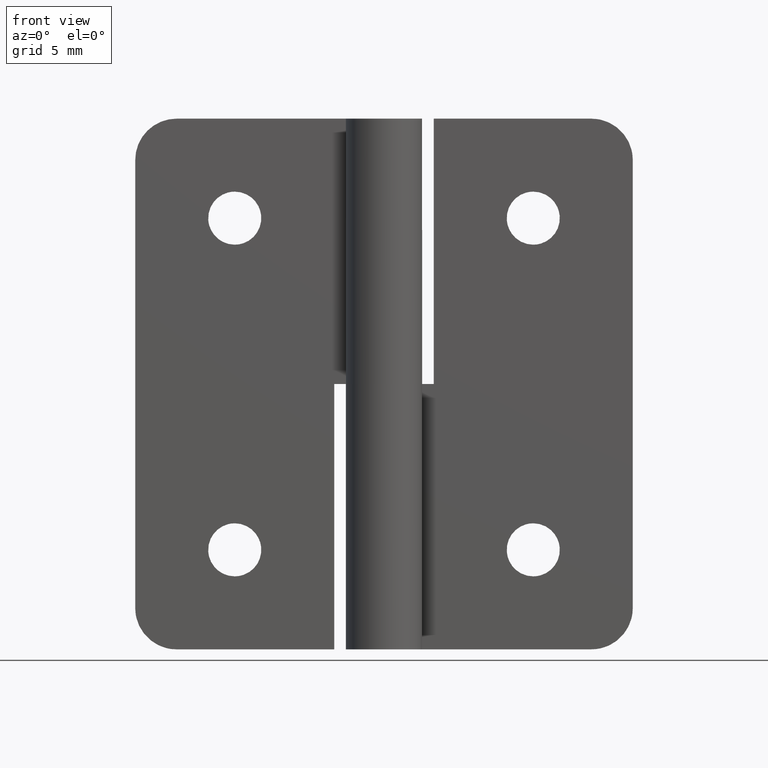
[diagram: clean part render]
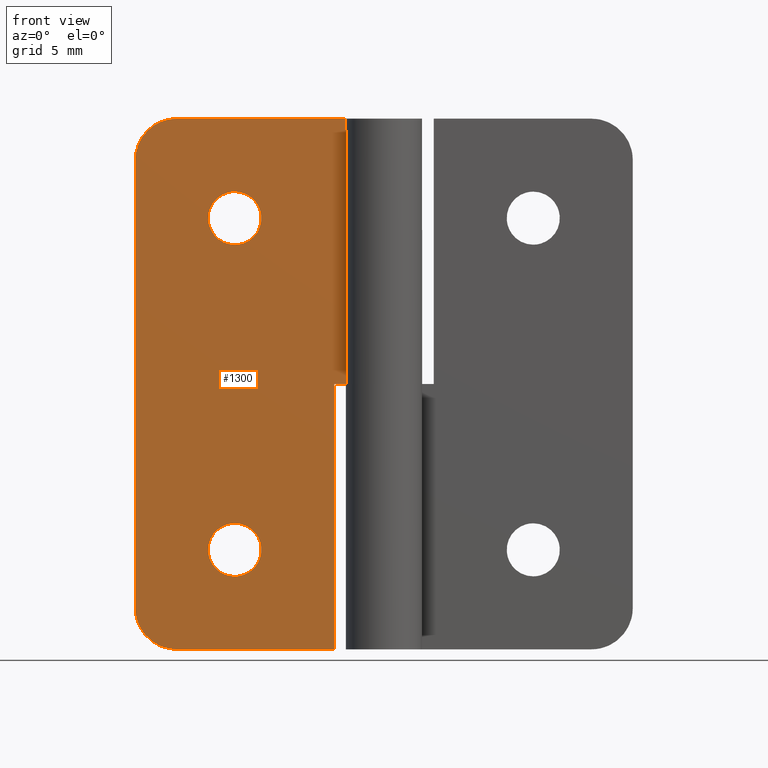
[diagram: same view with one face highlighted and labeled with its STEP entity id]
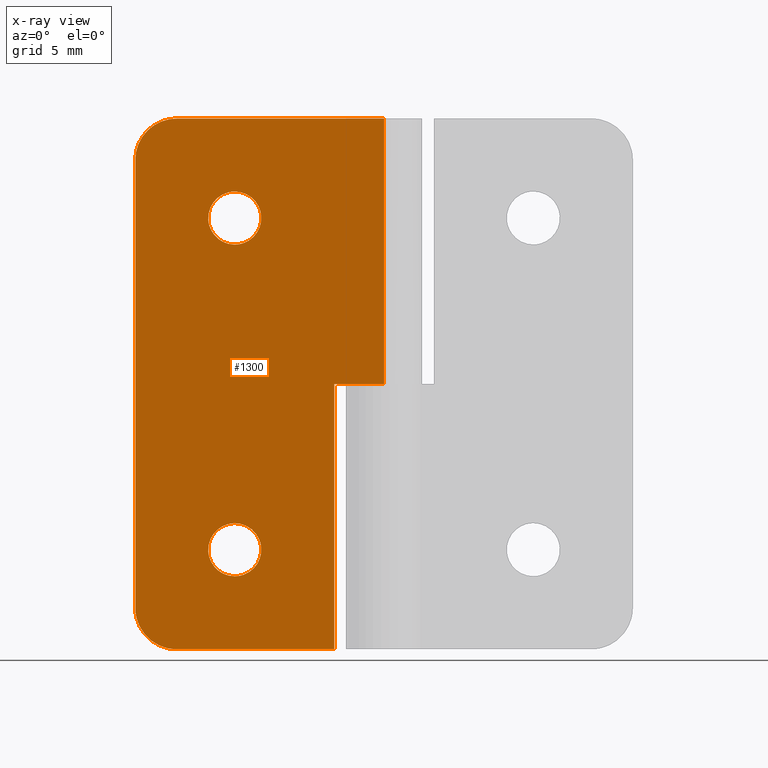
[diagram: x-ray of the same camera — body ghosted, the highlighted face saturated]
A machine part, front view. The second image highlights one B-rep face of the part: STEP entity #1300.
The next image is the same camera in x-ray: the body ghosted, the highlighted face saturated — about 0% of this face is hidden behind the body in this view.
In plain terms, the highlighted face is a freeform B-spline surface patch.
Its self-contained STEP definition (entity closure, byte-faithful):
#493=CARTESIAN_POINT('',(-10.597015677469701,1.499999999999946,25.902314336660918));
#494=VERTEX_POINT('',#493);
#500=CARTESIAN_POINT('',(-8.999999999999799,1.499999999999946,24.399991999999902));
#501=VERTEX_POINT('',#500);
#502=CARTESIAN_POINT('',(-8.999999999999799,1.499999999999946,24.399991999999902));
#503=CARTESIAN_POINT('',(-10.505129706891758,1.499999999999946,24.399991999999905));
#504=CARTESIAN_POINT('',(-10.597015677469699,1.499999999999947,25.902314336660911));
#512=(BOUNDED_CURVE()B_SPLINE_CURVE(2,(#502,#503,#504),.UNSPECIFIED.,.F.,.U.)B_SPLINE_CURVE_WITH_KNOTS((3,3),(0.500000000000000,0.739332962223986),.UNSPECIFIED.)CURVE()GEOMETRIC_REPRESENTATION_ITEM()RATIONAL_B_SPLINE_CURVE((1.0,0.719603993304233,0.976072041634662))REPRESENTATION_ITEM(''));
#513=EDGE_CURVE('',#501,#494,#512,.T.);
#515=CARTESIAN_POINT('',(-7.411184757819425,1.499999999999946,26.188846775463261));
#516=VERTEX_POINT('',#515);
#517=CARTESIAN_POINT('',(-7.411184757819425,1.499999999999946,26.188846775463265));
#518=CARTESIAN_POINT('',(-7.399999999999799,1.499999999999946,26.094750591455636));
#519=CARTESIAN_POINT('',(-7.399999999999800,1.499999999999946,25.999991999999899));
#520=CARTESIAN_POINT('',(-7.399999999999801,1.499999999999946,24.399991999999902));
#521=CARTESIAN_POINT('',(-8.999999999999799,1.499999999999946,24.399991999999902));
#529=(BOUNDED_CURVE()B_SPLINE_CURVE(2,(#517,#518,#519,#520,#521),.UNSPECIFIED.,.F.,.U.)B_SPLINE_CURVE_WITH_KNOTS((3,2,3),(0.229562473512975,0.250000000000000,0.500000000000000),.UNSPECIFIED.)CURVE()GEOMETRIC_REPRESENTATION_ITEM()RATIONAL_B_SPLINE_CURVE((0.956026754182654,0.976055948330520,1.0,0.707106781186548,1.0))REPRESENTATION_ITEM(''));
#530=EDGE_CURVE('',#516,#501,#529,.T.);
#574=CARTESIAN_POINT('',(-8.999999999999799,1.499999999999946,27.599991999999901));
#575=VERTEX_POINT('',#574);
#576=CARTESIAN_POINT('',(-8.999999999999799,1.499999999999946,27.599991999999901));
#577=CARTESIAN_POINT('',(-7.578920758500213,1.499999999999946,27.599991999999897));
#578=CARTESIAN_POINT('',(-7.411184757819425,1.499999999999946,26.188846775463261));
#586=(BOUNDED_CURVE()B_SPLINE_CURVE(2,(#576,#577,#578),.UNSPECIFIED.,.F.,.U.)B_SPLINE_CURVE_WITH_KNOTS((3,3),(0.0,0.229562473512975),.UNSPECIFIED.)CURVE()GEOMETRIC_REPRESENTATION_ITEM()RATIONAL_B_SPLINE_CURVE((1.0,0.731050832856027,0.956026754182654))REPRESENTATION_ITEM(''));
#587=EDGE_CURVE('',#575,#516,#586,.T.);
#589=CARTESIAN_POINT('',(-10.597015677469699,1.499999999999947,25.902314336660911));
#590=CARTESIAN_POINT('',(-10.599999999999797,1.499999999999946,25.951107578638712));
#591=CARTESIAN_POINT('',(-10.599999999999801,1.499999999999946,25.999991999999899));
#592=CARTESIAN_POINT('',(-10.599999999999801,1.499999999999946,27.599991999999908));
#593=CARTESIAN_POINT('',(-8.999999999999799,1.499999999999946,27.599991999999901));
#601=(BOUNDED_CURVE()B_SPLINE_CURVE(2,(#589,#590,#591,#592,#593),.UNSPECIFIED.,.F.,.U.)B_SPLINE_CURVE_WITH_KNOTS((3,2,3),(0.739332962223986,0.750000000000000,1.0),.UNSPECIFIED.)CURVE()GEOMETRIC_REPRESENTATION_ITEM()RATIONAL_B_SPLINE_CURVE((0.976072041634662,0.987502787882314,1.0,0.707106781186548,1.0))REPRESENTATION_ITEM(''));
#602=EDGE_CURVE('',#494,#575,#601,.T.);
#679=CARTESIAN_POINT('',(-10.597015677469701,1.499999999999946,5.902322336661106));
#680=VERTEX_POINT('',#679);
#686=CARTESIAN_POINT('',(-8.999999999999799,1.499999999999946,4.400000000000100));
#687=VERTEX_POINT('',#686);
#688=CARTESIAN_POINT('',(-8.999999999999799,1.499999999999946,4.400000000000100));
#689=CARTESIAN_POINT('',(-10.505129706891758,1.499999999999946,4.400000000000100));
#690=CARTESIAN_POINT('',(-10.597015677469699,1.499999999999947,5.902322336661106));
#698=(BOUNDED_CURVE()B_SPLINE_CURVE(2,(#688,#689,#690),.UNSPECIFIED.,.F.,.U.)B_SPLINE_CURVE_WITH_KNOTS((3,3),(0.500000000000000,0.739332962223986),.UNSPECIFIED.)CURVE()GEOMETRIC_REPRESENTATION_ITEM()RATIONAL_B_SPLINE_CURVE((1.0,0.719603993304233,0.976072041634662))REPRESENTATION_ITEM(''));
#699=EDGE_CURVE('',#687,#680,#698,.T.);
#701=CARTESIAN_POINT('',(-7.411184757819425,1.499999999999946,6.188854775463462));
#702=VERTEX_POINT('',#701);
#703=CARTESIAN_POINT('',(-7.411184757819425,1.499999999999945,6.188854775463462));
#704=CARTESIAN_POINT('',(-7.399999999999799,1.499999999999946,6.094758591455836));
#705=CARTESIAN_POINT('',(-7.399999999999800,1.499999999999946,6.000000000000100));
#706=CARTESIAN_POINT('',(-7.399999999999801,1.499999999999946,4.400000000000100));
#707=CARTESIAN_POINT('',(-8.999999999999799,1.499999999999946,4.400000000000100));
#715=(BOUNDED_CURVE()B_SPLINE_CURVE(2,(#703,#704,#705,#706,#707),.UNSPECIFIED.,.F.,.U.)B_SPLINE_CURVE_WITH_KNOTS((3,2,3),(0.229562473512975,0.250000000000000,0.500000000000000),.UNSPECIFIED.)CURVE()GEOMETRIC_REPRESENTATION_ITEM()RATIONAL_B_SPLINE_CURVE((0.956026754182653,0.976055948330520,1.0,0.707106781186548,1.0))REPRESENTATION_ITEM(''));
#716=EDGE_CURVE('',#702,#687,#715,.T.);
#760=CARTESIAN_POINT('',(-8.999999999999799,1.499999999999946,7.600000000000100));
#761=VERTEX_POINT('',#760);
#762=CARTESIAN_POINT('',(-8.999999999999799,1.499999999999946,7.600000000000100));
#763=CARTESIAN_POINT('',(-7.578920758500216,1.499999999999946,7.600000000000099));
#764=CARTESIAN_POINT('',(-7.411184757819425,1.499999999999945,6.188854775463462));
#772=(BOUNDED_CURVE()B_SPLINE_CURVE(2,(#762,#763,#764),.UNSPECIFIED.,.F.,.U.)B_SPLINE_CURVE_WITH_KNOTS((3,3),(0.0,0.229562473512975),.UNSPECIFIED.)CURVE()GEOMETRIC_REPRESENTATION_ITEM()RATIONAL_B_SPLINE_CURVE((1.0,0.731050832856028,0.956026754182653))REPRESENTATION_ITEM(''));
#773=EDGE_CURVE('',#761,#702,#772,.T.);
#775=CARTESIAN_POINT('',(-10.597015677469695,1.499999999999946,5.902322336661107));
#776=CARTESIAN_POINT('',(-10.599999999999806,1.499999999999947,5.951115578638902));
#777=CARTESIAN_POINT('',(-10.599999999999801,1.499999999999946,6.000000000000100));
#778=CARTESIAN_POINT('',(-10.599999999999801,1.499999999999946,7.600000000000100));
#779=CARTESIAN_POINT('',(-8.999999999999799,1.499999999999946,7.600000000000100));
#787=(BOUNDED_CURVE()B_SPLINE_CURVE(2,(#775,#776,#777,#778,#779),.UNSPECIFIED.,.F.,.U.)B_SPLINE_CURVE_WITH_KNOTS((3,2,3),(0.739332962223985,0.750000000000000,1.0),.UNSPECIFIED.)CURVE()GEOMETRIC_REPRESENTATION_ITEM()RATIONAL_B_SPLINE_CURVE((0.976072041634660,0.987502787882313,1.0,0.707106781186548,1.0))REPRESENTATION_ITEM(''));
#788=EDGE_CURVE('',#680,#761,#787,.T.);
#814=CARTESIAN_POINT('',(-3.0,1.499999999999946,0.0));
#815=VERTEX_POINT('',#814);
#816=CARTESIAN_POINT('',(-3.0,1.499999999999946,16.0));
#817=VERTEX_POINT('',#816);
#818=CARTESIAN_POINT('',(-3.0,1.499999999999946,0.0));
#819=CARTESIAN_POINT('',(-3.0,1.499999999999946,16.0));
#820=QUASI_UNIFORM_CURVE('',1,(#818,#819),.UNSPECIFIED.,.F.,.U.);
#821=EDGE_CURVE('',#815,#817,#820,.T.);
#850=CARTESIAN_POINT('',(0.0,1.499999999999986,16.0));
#851=VERTEX_POINT('',#850);
#852=CARTESIAN_POINT('',(-3.0,1.499999999999946,16.0));
#853=CARTESIAN_POINT('',(0.0,1.499999999999986,16.0));
#854=QUASI_UNIFORM_CURVE('',1,(#852,#853),.UNSPECIFIED.,.F.,.U.);
#855=EDGE_CURVE('',#817,#851,#854,.T.);
#936=CARTESIAN_POINT('',(-14.999991999999899,1.499999999999986,29.499991999999850));
#937=VERTEX_POINT('',#936);
#938=CARTESIAN_POINT('',(-12.499991999999899,1.499999999999986,31.999991999999889));
#939=VERTEX_POINT('',#938);
#940=CARTESIAN_POINT('',(-14.999991999999899,1.499999999999986,29.499991999999899));
#941=CARTESIAN_POINT('',(-14.999991999999901,1.499999999999986,30.535525905932623));
#942=CARTESIAN_POINT('',(-14.267758952966290,1.499999999999986,31.267758952966251));
#943=CARTESIAN_POINT('',(-13.535525905932657,1.499999999999986,31.999991999999903));
#944=CARTESIAN_POINT('',(-12.499991999999899,1.499999999999986,31.999991999999899));
#952=(BOUNDED_CURVE()B_SPLINE_CURVE(2,(#940,#941,#942,#943,#944),.UNSPECIFIED.,.F.,.U.)B_SPLINE_CURVE_WITH_KNOTS((3,2,3),(0.0,0.500000000000000,1.0),.UNSPECIFIED.)CURVE()GEOMETRIC_REPRESENTATION_ITEM()RATIONAL_B_SPLINE_CURVE((1.0,0.923879532511289,1.0,0.923879532511289,1.0))REPRESENTATION_ITEM(''));
#953=EDGE_CURVE('',#937,#939,#952,.T.);
#1001=CARTESIAN_POINT('',(-12.499991999999899,1.499999999999986,0.0));
#1002=VERTEX_POINT('',#1001);
#1003=CARTESIAN_POINT('',(-14.999991999999899,1.499999999999986,2.499999999999945));
#1004=VERTEX_POINT('',#1003);
#1005=CARTESIAN_POINT('',(-12.499991999999899,1.499999999999986,0.0));
#1006=CARTESIAN_POINT('',(-14.999991999999910,1.499999999999985,-5.507747E-014));
#1007=CARTESIAN_POINT('',(-14.999991999999899,1.499999999999986,2.499999999999945));
#1015=(BOUNDED_CURVE()B_SPLINE_CURVE(2,(#1005,#1006,#1007),.UNSPECIFIED.,.F.,.U.)CURVE()GEOMETRIC_REPRESENTATION_ITEM()QUASI_UNIFORM_CURVE()RATIONAL_B_SPLINE_CURVE((1.0,0.707106781186548,1.0))REPRESENTATION_ITEM(''));
#1016=EDGE_CURVE('',#1002,#1004,#1015,.T.);
#1053=CARTESIAN_POINT('',(0.0,1.499999999999986,31.999991999999889));
#1054=VERTEX_POINT('',#1053);
#1055=CARTESIAN_POINT('',(0.0,1.499999999999986,31.999991999999889));
#1056=CARTESIAN_POINT('',(-12.499991999999899,1.499999999999986,31.999991999999889));
#1057=QUASI_UNIFORM_CURVE('',1,(#1055,#1056),.UNSPECIFIED.,.F.,.U.);
#1058=EDGE_CURVE('',#1054,#939,#1057,.T.);
#1124=CARTESIAN_POINT('',(-3.0,1.499999999999946,0.0));
#1125=CARTESIAN_POINT('',(-12.499991999999899,1.499999999999986,0.0));
#1126=QUASI_UNIFORM_CURVE('',1,(#1124,#1125),.UNSPECIFIED.,.F.,.U.);
#1127=EDGE_CURVE('',#815,#1002,#1126,.T.);
#1197=CARTESIAN_POINT('',(-14.999991999999899,1.499999999999986,2.499999999999945));
#1198=CARTESIAN_POINT('',(-14.999991999999899,1.499999999999986,29.499991999999850));
#1199=QUASI_UNIFORM_CURVE('',1,(#1197,#1198),.UNSPECIFIED.,.F.,.U.);
#1200=EDGE_CURVE('',#1004,#937,#1199,.T.);
#1237=CARTESIAN_POINT('',(0.0,1.499999999999986,16.0));
#1238=CARTESIAN_POINT('',(0.0,1.499999999999986,31.999991999999889));
#1239=QUASI_UNIFORM_CURVE('',1,(#1237,#1238),.UNSPECIFIED.,.F.,.U.);
#1240=EDGE_CURVE('',#851,#1054,#1239,.T.);
#1273=CARTESIAN_POINT('',(-15.749241993754580,1.499999999999986,33.598392139163757));
#1274=CARTESIAN_POINT('',(-15.749241993754580,1.499999999999986,-1.598400425266082));
#1275=CARTESIAN_POINT('',(0.749249993754676,1.499999999999986,33.598392139163757));
#1276=CARTESIAN_POINT('',(0.749249993754676,1.499999999999986,-1.598400425266082));
#1277=B_SPLINE_SURFACE_WITH_KNOTS('',1,1,((#1273,#1275),(#1274,#1276)),.UNSPECIFIED.,.F.,.F.,.U.,(2,2),(2,2),(0.0,35.196792564429842),(0.0,16.498491987509251),.UNSPECIFIED.);
#1278=ORIENTED_EDGE('',*,*,#855,.T.);
#1279=ORIENTED_EDGE('',*,*,#1240,.T.);
#1280=ORIENTED_EDGE('',*,*,#1058,.T.);
#1281=ORIENTED_EDGE('',*,*,#953,.F.);
#1282=ORIENTED_EDGE('',*,*,#1200,.F.);
#1283=ORIENTED_EDGE('',*,*,#1016,.F.);
#1284=ORIENTED_EDGE('',*,*,#1127,.F.);
#1285=ORIENTED_EDGE('',*,*,#821,.T.);
#1286=EDGE_LOOP('',(#1278,#1279,#1280,#1281,#1282,#1283,#1284,#1285));
#1287=FACE_OUTER_BOUND('',#1286,.T.);
#1288=ORIENTED_EDGE('',*,*,#699,.T.);
#1289=ORIENTED_EDGE('',*,*,#788,.T.);
#1290=ORIENTED_EDGE('',*,*,#773,.T.);
#1291=ORIENTED_EDGE('',*,*,#716,.T.);
#1292=EDGE_LOOP('',(#1288,#1289,#1290,#1291));
#1293=FACE_BOUND('',#1292,.T.);
#1294=ORIENTED_EDGE('',*,*,#513,.T.);
#1295=ORIENTED_EDGE('',*,*,#602,.T.);
#1296=ORIENTED_EDGE('',*,*,#587,.T.);
#1297=ORIENTED_EDGE('',*,*,#530,.T.);
#1298=EDGE_LOOP('',(#1294,#1295,#1296,#1297));
#1299=FACE_BOUND('',#1298,.T.);
#1300=ADVANCED_FACE('',(#1287,#1293,#1299),#1277,.T.);